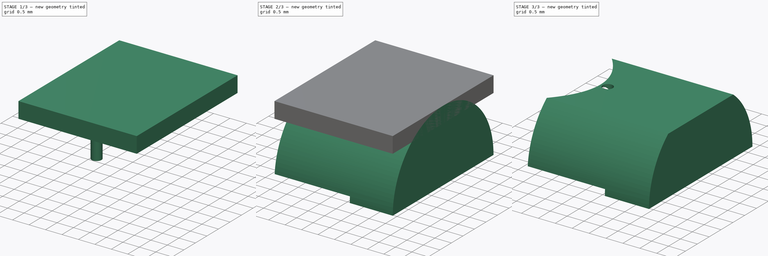
[diagram: build sequence overview — one tinted view per stage of 3, left to right]
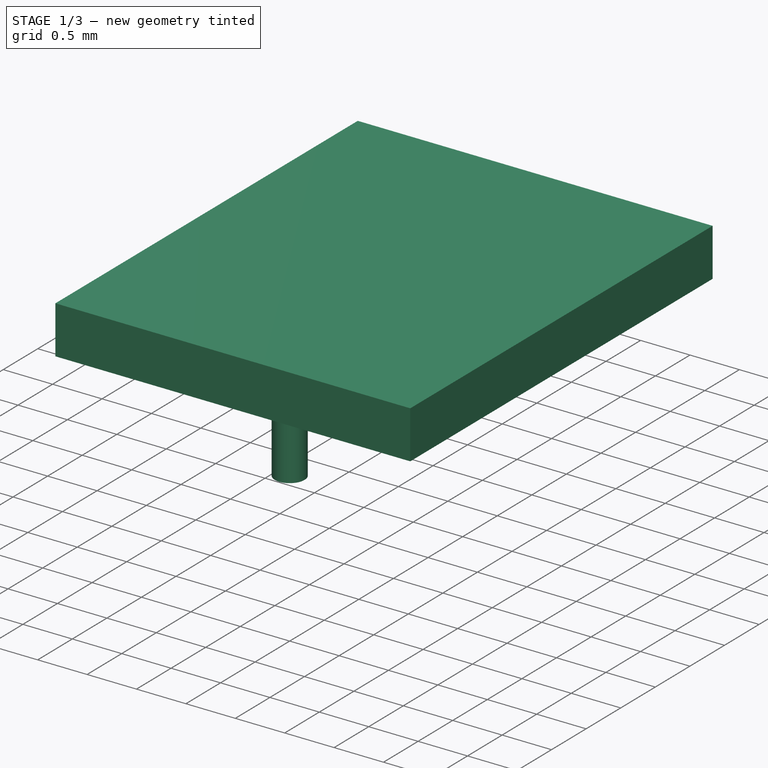
[diagram: stage 1 of 3 — iso view after this stage's code; geometry added in this stage tinted green]
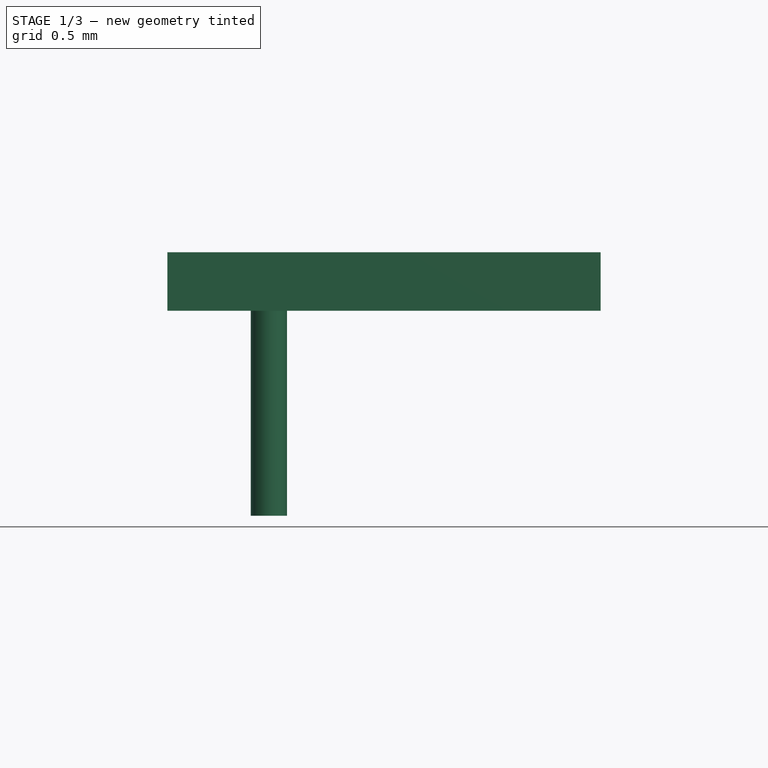
[diagram: stage 1 of 3 — front view after this stage's code; geometry added in this stage tinted green]
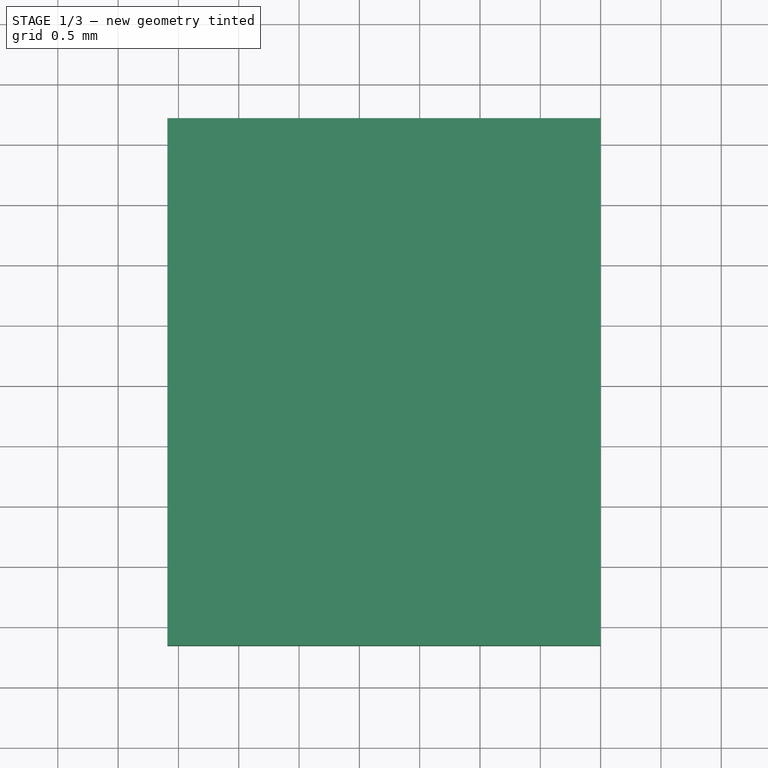
[diagram: stage 1 of 3 — top view after this stage's code; geometry added in this stage tinted green]
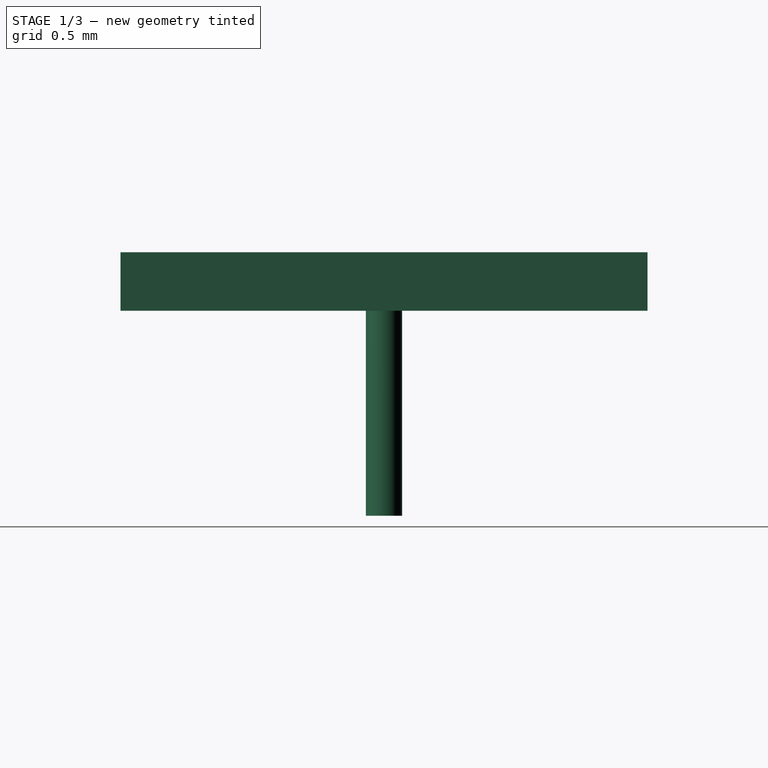
[diagram: stage 1 of 3 — right view after this stage's code; geometry added in this stage tinted green]
FCSTD DOCUMENT  (FreeCAD 0.21R33675 (Git))
Label: parapolic
License: All rights reserved
LicenseURL: http://en.wikipedia.org/wiki/All_rights_reserved
objects: Part::Cut×3, Part::Box×2, Spreadsheet::Sheet×1, Sketcher::SketchObject×1, PartDesign::Revolution×1, PartDesign::Body×1, Part::Cylinder×1, Part::Feature×1
note: 11 computed .brp shape members not serialized (recipe doc carries the construction recipe); baked Part::Feature solids carry a one-line shape summary decoded from their .brp

FEATURE [Part::Box] Box001  label="Obergrenze"
  AttacherType = Attacher::AttachEngine3D
  Height = 0.485
  Length = 3.59141
  Placement = pos=(-0.591408,-2.185,1.7) rot=(0,0,1;0rad)
  Width = 4.37
  expr: .Placement.Base.x = -Spreadsheet.pos_max_width
  expr: .Placement.Base.y = -Spreadsheet.max_width
  expr: .Placement.Base.z = Spreadsheet.max_height
  expr: Height = Spreadsheet.max_width - Spreadsheet.max_height
  expr: Length = Spreadsheet.tot_length_constr
  expr: Width = 2 * Spreadsheet.max_width
FEATURE [Part::Cylinder] Cylinder  label="Elektronen-Loch"
  Angle = 360
  AttacherType = Attacher::AttachEngine3D
  FirstAngle = 0
  Height = 1.7
  Placement = pos=(0.25,0,0) rot=(0,0,1;0rad)
  Radius = 0.15
  SecondAngle = 0
  expr: .Placement.Base.x = Spreadsheet.center_offset
  expr: Height = Spreadsheet.max_height
  expr: Radius = Spreadsheet.radius_e
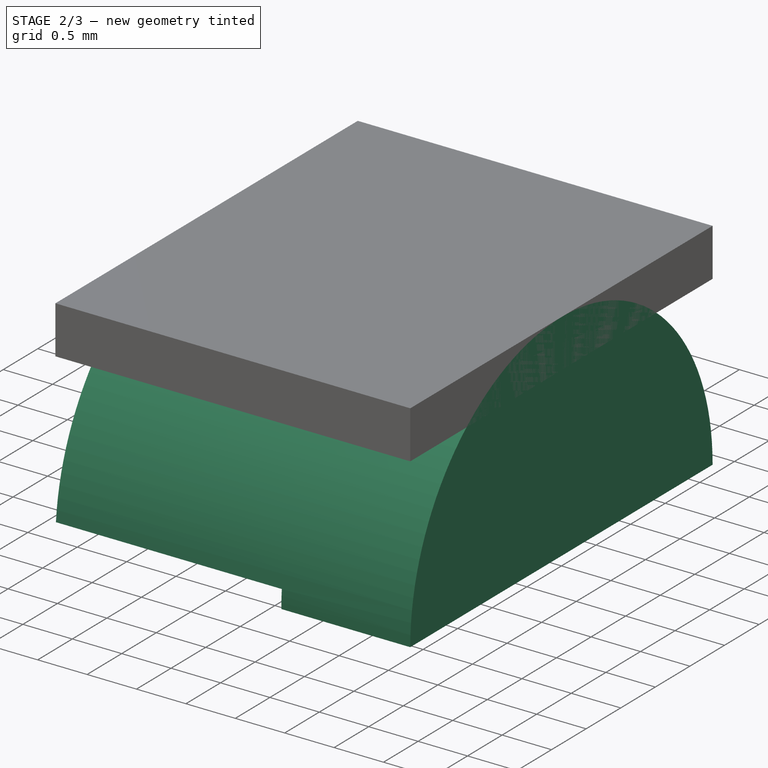
[diagram: stage 2 of 3 — iso view after this stage's code; geometry added in this stage tinted green]
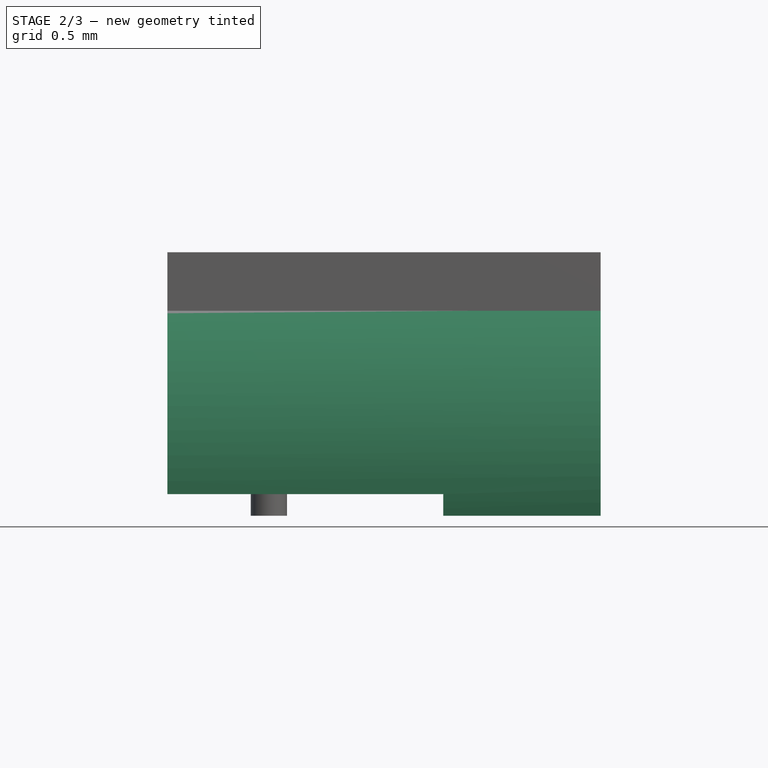
[diagram: stage 2 of 3 — front view after this stage's code; geometry added in this stage tinted green]
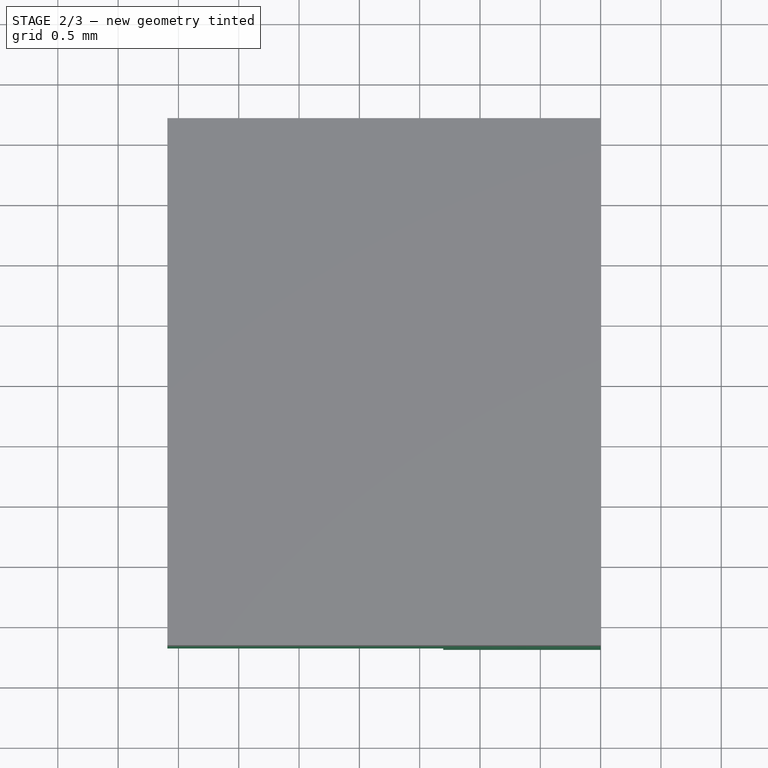
[diagram: stage 2 of 3 — top view after this stage's code; geometry added in this stage tinted green]
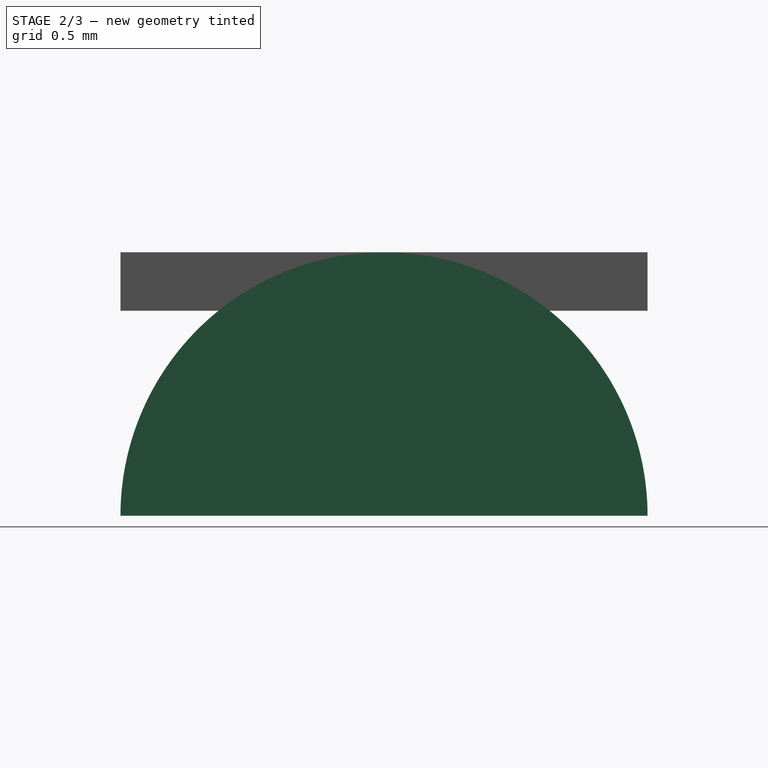
[diagram: stage 2 of 3 — right view after this stage's code; geometry added in this stage tinted green]
FEATURE [Spreadsheet::Sheet] Spreadsheet
  cells = A1='PARAMETER; B1='VALUE [mm]; A2='focal length; B2(focal_length)=0.75; A3='maximum height; B3(max_height)=1.7; A4='maximum width; B4(max_width)=2.185; A5='center offset; B5(center_offset)=0.25; A6='vertex position; B6(vertex)==B5 + B2; A7='radius sample hole; B7(radius)=1.695; A8='elevation position; B8(elevation_pos)==B7 - B6; A9='elevation; B9(elevation)=0.18; A10='offset max width; B10(pos_max_width)==-(-1 / (4 * B2) * B4 ^ 2 + B6); A11='length; B11(tot_length)=2; A12='outer rim; B12(rim)==-1 / (4 * B2) * B3 ^ 2 + B6; A13='shadow; B13(shadow)==B5 + B10 + B2; A14='total length; B14(tot_length_constr)==B11 + B13; A15='radius e-beam hole; B15(radius_e)=0.15
FEATURE [Sketcher::SketchObject] Sketch  label="Spiegel_Sketch"
  FullyConstrained = true
  expr: Constraints[13] = Spreadsheet.tot_length
  expr: Constraints[18] = Spreadsheet.max_width
  expr: Constraints[1] = Spreadsheet.center_offset
  expr: Constraints[24] = Spreadsheet.rim
  expr: Constraints[3] = Spreadsheet.focal_length
  expr: Constraints[4] = Spreadsheet.max_height
  expr: Constraints[6] = Spreadsheet.pos_max_width
  expr: Constraints[7] = Spreadsheet.max_width
  sketch-geometry (12):
    g0: GeomPoint X=0.25 Y=-1e-16 Z=0
    g1: GeomPoint X=1 Y=0 Z=0
    g2: GeomPoint X=0.0366667 Y=1.7 Z=0
    g3: GeomPoint X=-0.591408 Y=0 Z=0
    g4: GeomPoint X=-0.591408 Y=2.185 Z=0
    g5: ArcOfParabola CenterX=1 CenterY=0 CenterZ=0 NormalX=0 NormalY=0 NormalZ=1 Focal=0.75 AngleXU=-3.14159 StartAngle=-2.185 EndAngle=0
    g6: GeomPoint X=0.25 Y=-1e-16 Z=0
    g7: GeomPoint X=3 Y=0 Z=0
    g8: LineSegment StartX=1 StartY=0 StartZ=0 EndX=3 EndY=0 EndZ=0
    g9: LineSegment StartX=3 StartY=0 StartZ=0 EndX=3 EndY=2.185 EndZ=0
    g10: LineSegment StartX=-0.591408 StartY=2.185 StartZ=0 EndX=3 EndY=2.185 EndZ=0
    g11: GeomPoint X=0.0366667 Y=0 Z=0
  constraints (25):
    c: PointOnObject(g0,g-1)
    c: DistanceX(g-1,g0) = 0.25
    c: PointOnObject(g1,g-1)
    c: DistanceX(g0,g1) = 0.75
    c: DistanceY(g0,g2) = 1.7
    c: PointOnObject(g3,g-1)
    c: DistanceX(g3,g-1) = 0.591408
    c: DistanceY(g3,g4) = 2.185
    c: InternalAlignment(g6,g5)
    c: Coincident(g6,g0)
    c: Coincident(g5,g1)
    c: Coincident(g5,g4)
    c: PointOnObject(g7,g-1)
    c: DistanceX(g5,g7) = 2
    c: Coincident(g8,g5)
    c: Coincident(g8,g7)
    c: Horizontal(g8)
    c: Coincident(g9,g8)
    c: DistanceY(g9,g9) = 2.185
    c: Coincident(g10,g5)
    c: Coincident(g10,g9)
    c: Vertical(g9)
    c: PointOnObject(g2,g5)
    c: PointOnObject(g11,g-1)
    c: DistanceX(g-1,g11) = 0.0366667
FEATURE [PartDesign::Revolution] Revolution
  Angle = 180
  Axis = (1,0,0)
  Base = (0,0,0)
  Profile = -> Sketch
  ReferenceAxis = -> Sketch [H_Axis]
FEATURE [PartDesign::Body] Body  label="Spiegel"
  Group = -> [Revolution,Sketch]
  Origin = -> Origin
  Tip = -> Revolution
FEATURE [Part::Box] Box  label="Ausnehmung"
  AttacherType = Attacher::AttachEngine3D
  Height = 0.18
  Length = 2.28641
  Placement = pos=(-0.591408,-2.185,0) rot=(0,0,1;0rad)
  Width = 4.37
  expr: .Placement.Base.x = -Spreadsheet.pos_max_width
  expr: .Placement.Base.y = -Spreadsheet.max_width
  expr: Height = Spreadsheet.elevation
  expr: Length = Spreadsheet.elevation_pos + Spreadsheet.pos_max_width + Spreadsheet.vertex
  expr: Width = 2 * Spreadsheet.max_width
FEATURE [Part::Cut] Cut  label="Spiegel + Ausnehmung"
  Base = -> Revolution
  Tool = -> Box
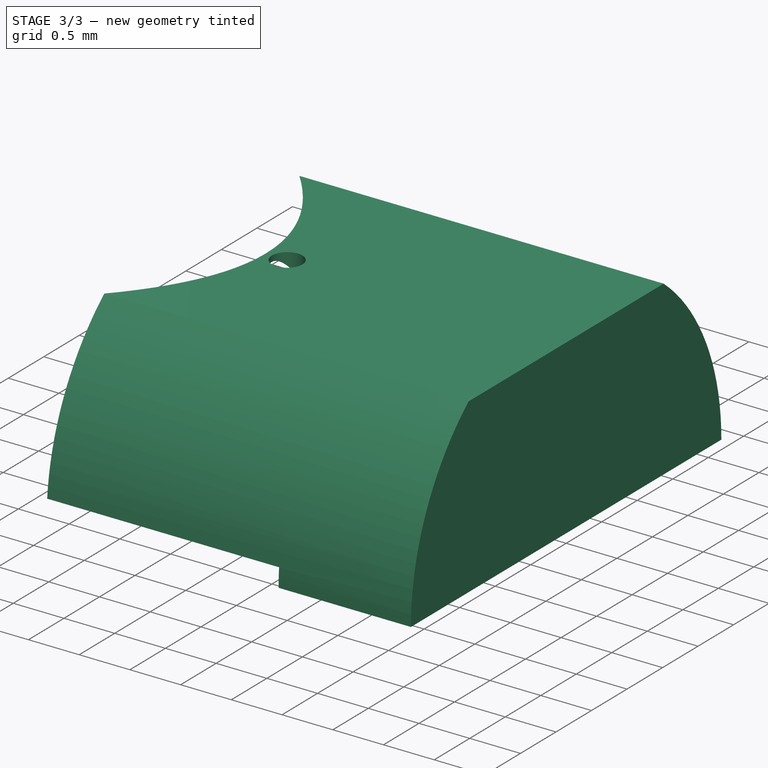
[diagram: stage 3 of 3 — iso view after this stage's code; geometry added in this stage tinted green]
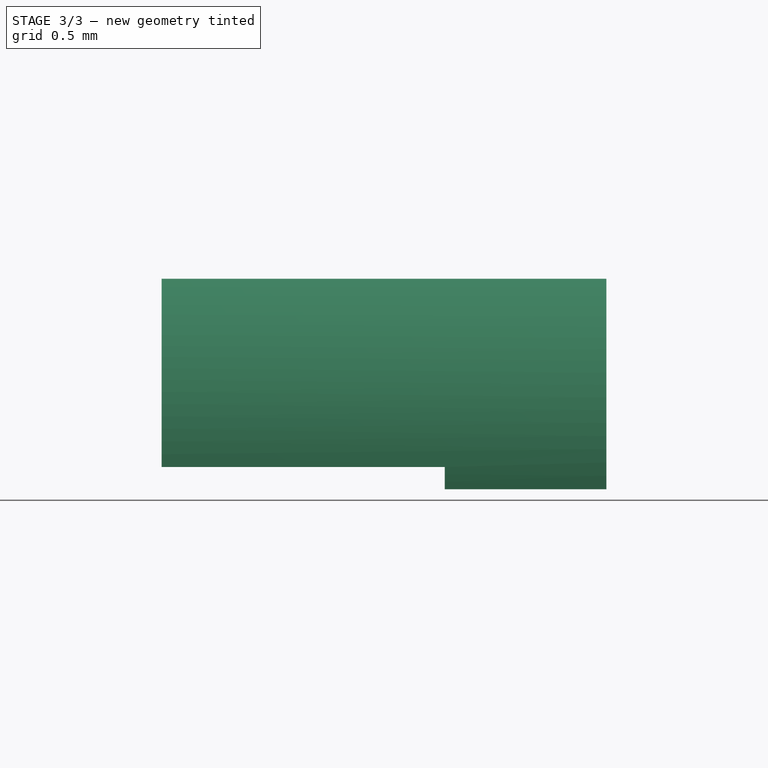
[diagram: stage 3 of 3 — front view after this stage's code; geometry added in this stage tinted green]
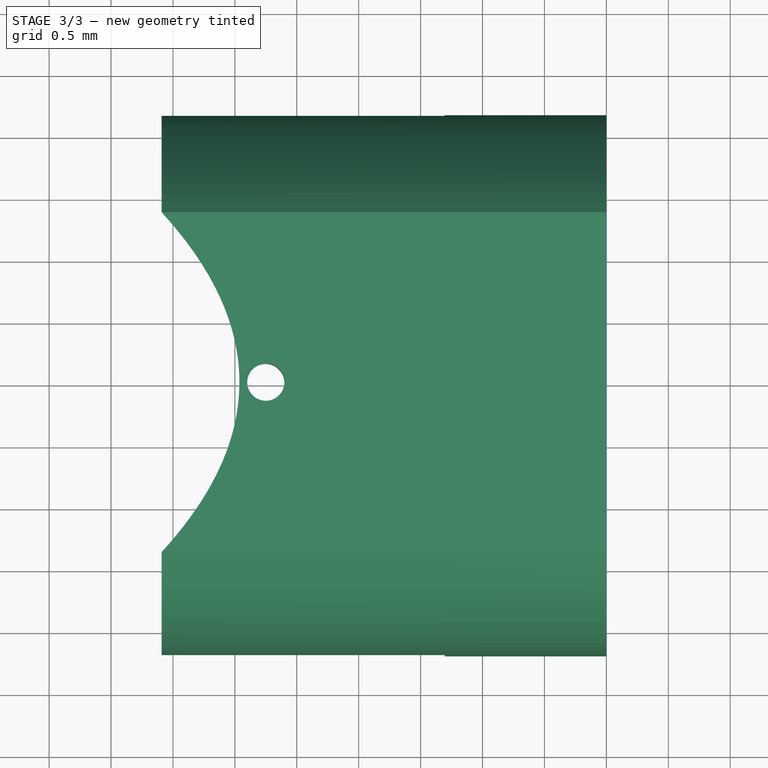
[diagram: stage 3 of 3 — top view after this stage's code; geometry added in this stage tinted green]
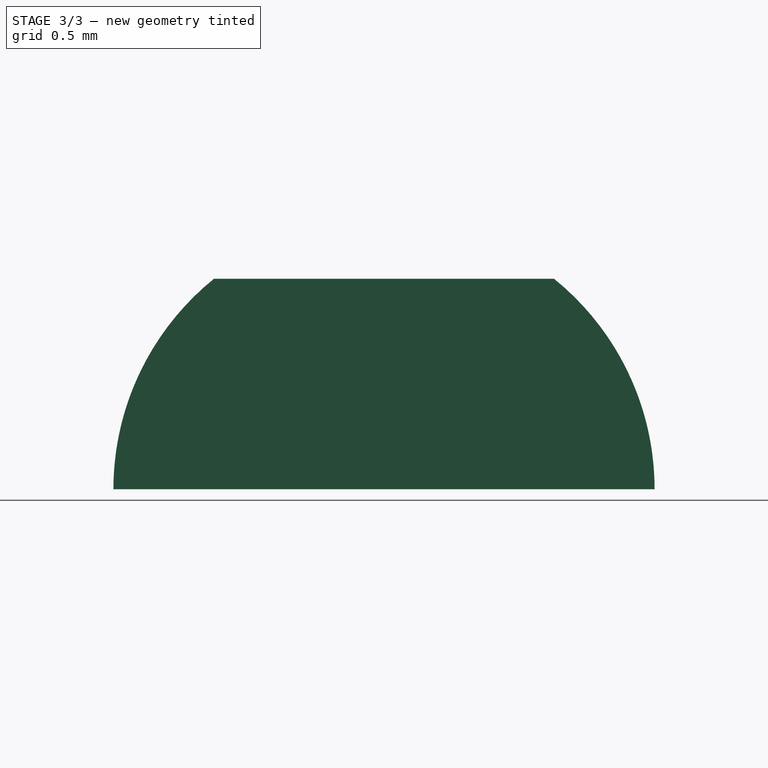
[diagram: stage 3 of 3 — right view after this stage's code; geometry added in this stage tinted green]
FEATURE [Part::Cut] Cut001  label="Spiegel + Ausnehmung (Hoehe angepasst)"
  Base = -> Cut
  Tool = -> Box001
FEATURE [Part::Cut] Cut002  label="Spiegel + Ausnehmung (Hoehe angepasst, Elektronen-Loch)"
  Base = -> Cut001
  Tool = -> Cylinder
FEATURE [Part::Feature] Cut002_solid  label="Spiegel + Ausnehmung (Hoehe angepasst, Elektronen-Loch) (Solid)"
  shape: bbox 3.591 x 4.37 x 2.185 mm, 10 faces (baked)
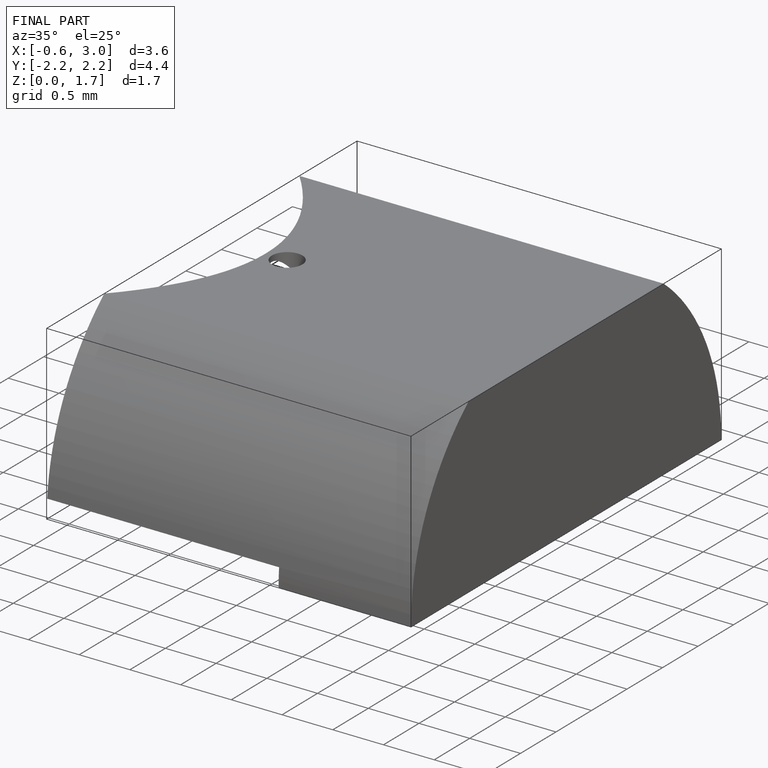
[diagram: finished part — iso view with bounding-box wireframe]
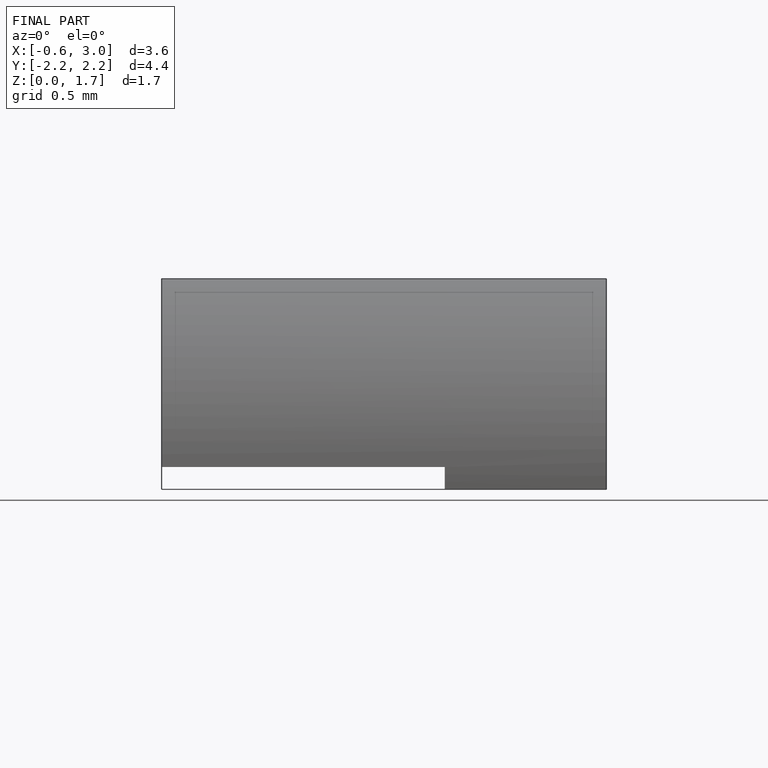
[diagram: finished part — front view with bounding-box wireframe]
